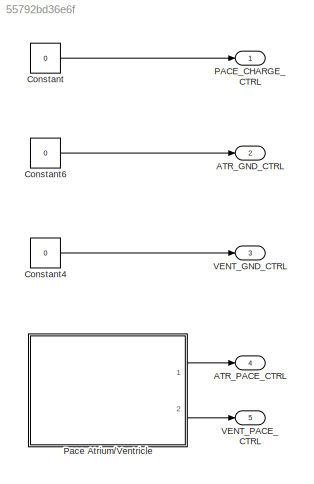
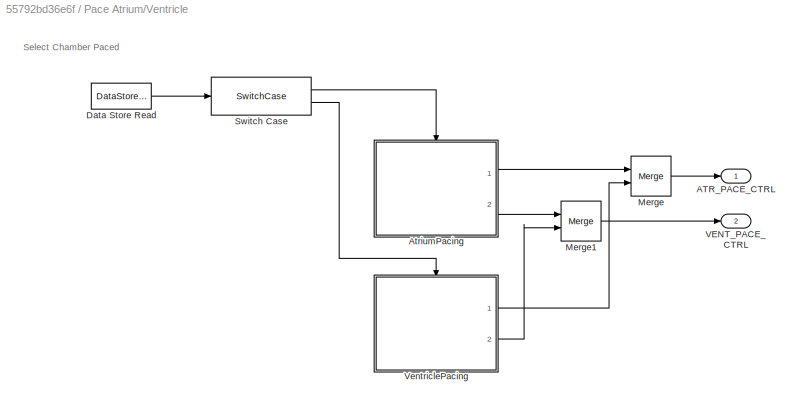
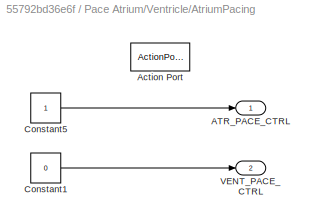
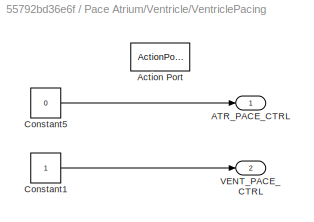
MODEL slx_55792bd36e6f
KIND model
CONFIG AbsTol = auto
CONFIG EnableMultiTasking = on
CONFIG FixedStep = 1e-3
CONFIG MaxStep = auto
CONFIG MinStep = auto
CONFIG RelTol = 1e-3
CONFIG SampleTimeConstraint = Unconstrained
CONFIG Solver = FixedStepAuto
CONFIG SolverName = FixedStepAuto
CONFIG StartTime = 0.0
CONFIG StopTime = 10.0
BLOCK [Outport] ATR_GND_CTRL
  Port = 2
BLOCK [Outport] ATR_PACE_CTRL
  Port = 4
BLOCK [Constant] Constant
  Value = 0
BLOCK [Constant] Constant4
  Value = 0
BLOCK [Constant] Constant6
  Value = 0
BLOCK [Outport] PACE_CHARGE_CTRL
BLOCK [SubSystem] Pace Atrium//Ventricle
  Ports = [0, 2]
  RequestExecContextInheritance = off
BLOCK [Outport] Pace Atrium//Ventricle/ATR_PACE_CTRL
BLOCK [SubSystem] Pace Atrium//Ventricle/AtriumPacing
  Ports = [0, 2, 0, 0, 0, 0, 0, 1]
  Priority = 12
  RequestExecContextInheritance = off
  VariantControl = ATR_PACING
BLOCK [Outport] Pace Atrium//Ventricle/AtriumPacing/ATR_PACE_CTRL
BLOCK [ActionPort] Pace Atrium//Ventricle/AtriumPacing/Action Port
  ActionPortLabel = case [ 1 ]:
BLOCK [Constant] Pace Atrium//Ventricle/AtriumPacing/Constant1
  Value = 0
BLOCK [Constant] Pace Atrium//Ventricle/AtriumPacing/Constant5
BLOCK [Outport] Pace Atrium//Ventricle/AtriumPacing/VENT_PACE_CTRL
  Port = 2
BLOCK [DataStoreRead] Pace Atrium//Ventricle/Data Store Read
  DataStoreName = Chamber
  Ports = [0, 1]
BLOCK [Merge] Pace Atrium//Ventricle/Merge
  Ports = [2, 1]
BLOCK [Merge] Pace Atrium//Ventricle/Merge1
  Ports = [2, 1]
BLOCK [SwitchCase] Pace Atrium//Ventricle/Switch Case
  CaseConditions = {1,2}
  Ports = [1, 2]
  ShowDefaultCase = off
BLOCK [Outport] Pace Atrium//Ventricle/VENT_PACE_CTRL
  Port = 2
BLOCK [SubSystem] Pace Atrium//Ventricle/VentriclePacing
  Ports = [0, 2, 0, 0, 0, 0, 0, 1]
  Priority = 12
  RequestExecContextInheritance = off
  VariantControl = VENT_PACING
BLOCK [Outport] Pace Atrium//Ventricle/VentriclePacing/ATR_PACE_CTRL
BLOCK [ActionPort] Pace Atrium//Ventricle/VentriclePacing/Action Port
  ActionPortLabel = case [ 2 ]:
BLOCK [Constant] Pace Atrium//Ventricle/VentriclePacing/Constant1
BLOCK [Constant] Pace Atrium//Ventricle/VentriclePacing/Constant5
  Value = 0
BLOCK [Outport] Pace Atrium//Ventricle/VentriclePacing/VENT_PACE_CTRL
  Port = 2
BLOCK [Outport] VENT_GND_CTRL
  Port = 3
BLOCK [Outport] VENT_PACE_CTRL
  Port = 5
ANNOTATION Pace Atrium//Ventricle: Select Chamber Paced
LINE Constant4:1 -> VENT_GND_CTRL:1
LINE Constant6:1 -> ATR_GND_CTRL:1
LINE Constant:1 -> PACE_CHARGE_CTRL:1
LINE Pace Atrium//Ventricle/AtriumPacing/Constant1:1 -> Pace Atrium//Ventricle/AtriumPacing/VENT_PACE_CTRL:1
LINE Pace Atrium//Ventricle/AtriumPacing/Constant5:1 -> Pace Atrium//Ventricle/AtriumPacing/ATR_PACE_CTRL:1
LINE Pace Atrium//Ventricle/AtriumPacing:1 -> Pace Atrium//Ventricle/Merge:1
LINE Pace Atrium//Ventricle/AtriumPacing:2 -> Pace Atrium//Ventricle/Merge1:1
LINE Pace Atrium//Ventricle/Data Store Read:1 -> Pace Atrium//Ventricle/Switch Case:1
LINE Pace Atrium//Ventricle/Merge1:1 -> Pace Atrium//Ventricle/VENT_PACE_CTRL:1
LINE Pace Atrium//Ventricle/Merge:1 -> Pace Atrium//Ventricle/ATR_PACE_CTRL:1
LINE Pace Atrium//Ventricle/Switch Case:1 -> Pace Atrium//Ventricle/AtriumPacing:ifaction
LINE Pace Atrium//Ventricle/Switch Case:2 -> Pace Atrium//Ventricle/VentriclePacing:ifaction
LINE Pace Atrium//Ventricle/VentriclePacing/Constant1:1 -> Pace Atrium//Ventricle/VentriclePacing/VENT_PACE_CTRL:1
LINE Pace Atrium//Ventricle/VentriclePacing/Constant5:1 -> Pace Atrium//Ventricle/VentriclePacing/ATR_PACE_CTRL:1
LINE Pace Atrium//Ventricle/VentriclePacing:1 -> Pace Atrium//Ventricle/Merge:2
LINE Pace Atrium//Ventricle/VentriclePacing:2 -> Pace Atrium//Ventricle/Merge1:2
LINE Pace Atrium//Ventricle:1 -> ATR_PACE_CTRL:1
LINE Pace Atrium//Ventricle:2 -> VENT_PACE_CTRL:1
